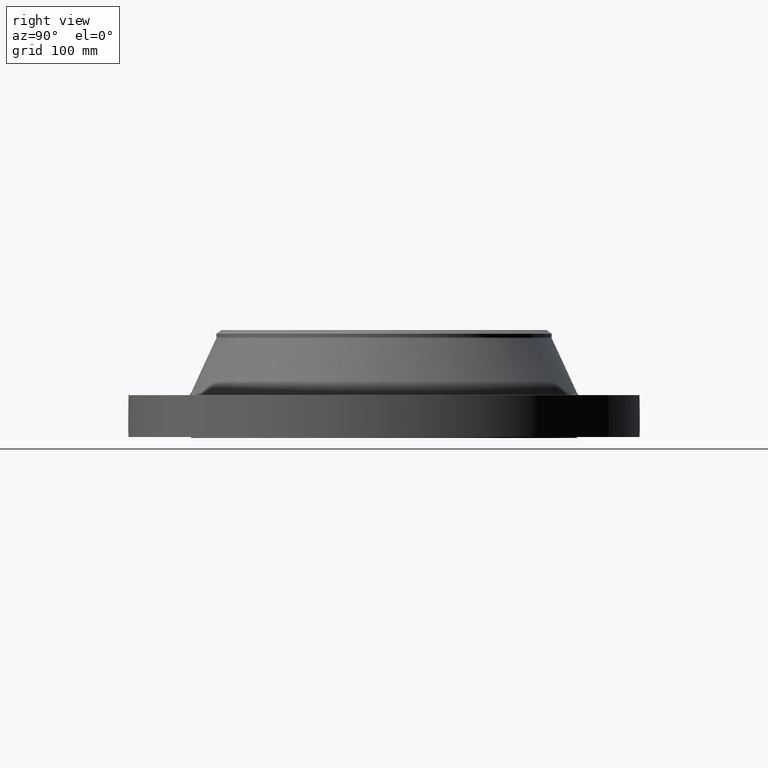
[diagram: clean part render]
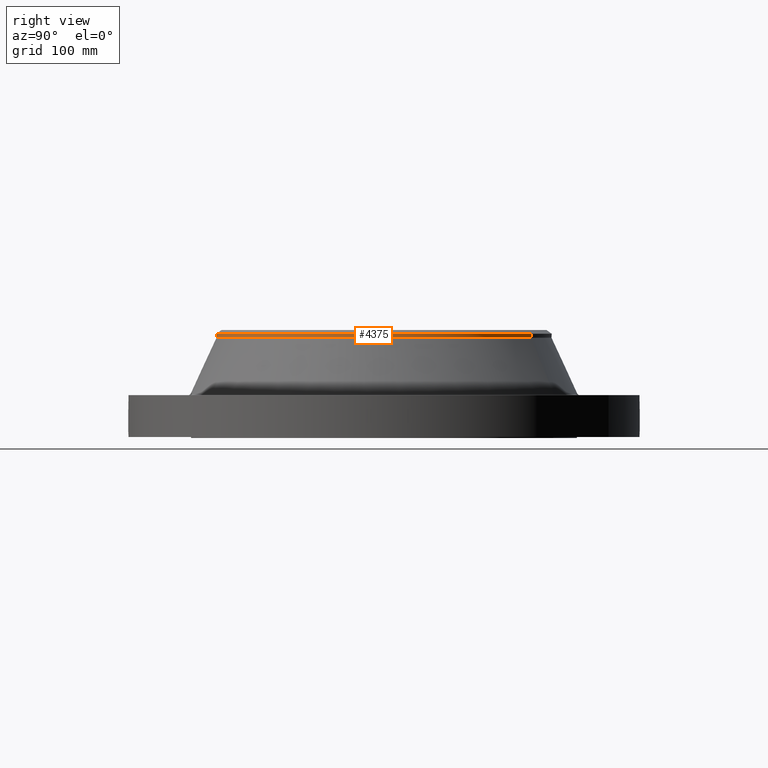
[diagram: same view with one face highlighted and labeled with its STEP entity id]
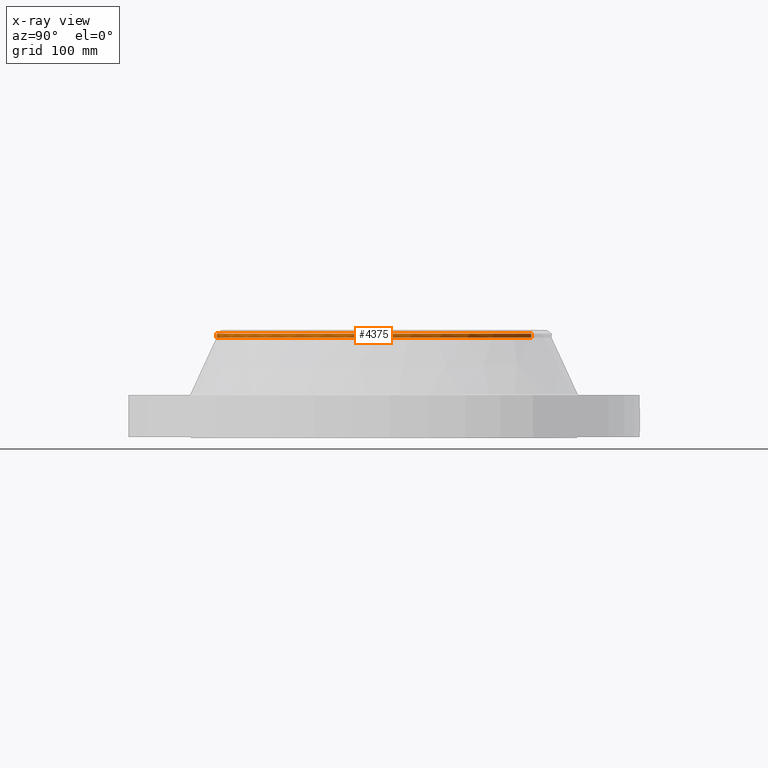
[diagram: x-ray of the same camera — body ghosted, the highlighted face saturated]
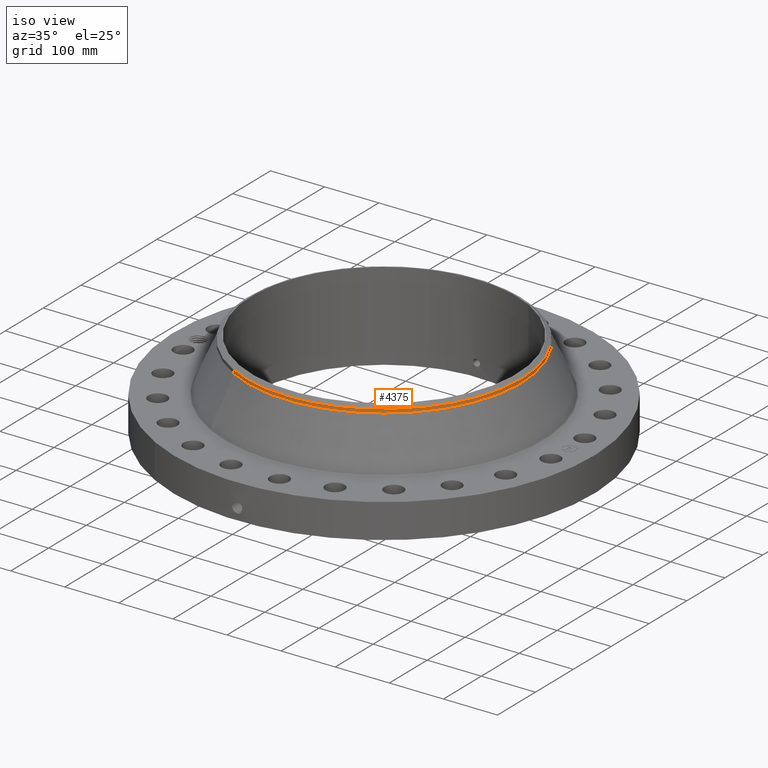
[diagram: same view with one face highlighted and labeled with its STEP entity id]
A machine part, right view. The second image highlights one B-rep face of the part: STEP entity #4375.
The next image is the same camera in x-ray: the body ghosted, the highlighted face saturated — about 0% of this face is hidden behind the body in this view.
A second angle (iso view) of the same face is appended — the face is thin or edge-on in the first view.
In plain terms, the highlighted cylindrical surface (partial cylindrical patch) has radius 254 mm, axis along (0, 0, -1).
Its self-contained STEP definition (entity closure, byte-faithful):
#3558=AXIS2_PLACEMENT_3D('Circle Axis2P3D',#3556,#3557,$) ;
#4340=AXIS2_PLACEMENT_3D('Cylinder Axis2P3D',#4337,#4338,#4339) ;
#4358=AXIS2_PLACEMENT_3D('Circle Axis2P3D',#4356,#4357,$) ;
#4365=AXIS2_PLACEMENT_3D('Circle Axis2P3D',#4363,#4364,$) ;
#3553=CARTESIAN_POINT('Vertex',(4.79425538606,8.77582561894,5.97645135496)) ;
#3556=CARTESIAN_POINT('Axis2P3D Location',(0.,0.,5.97645135496)) ;
#3560=CARTESIAN_POINT('Vertex',(-4.79425538606,-8.77582561894,5.97645135496)) ;
#4337=CARTESIAN_POINT('Axis2P3D Location',(0.,0.,3.22000000001)) ;
#4342=CARTESIAN_POINT('Line Origine',(-4.79425538606,-8.77582561894,6.09456159118)) ;
#4346=CARTESIAN_POINT('Vertex',(-4.79425538606,-8.77582561894,6.2126718274)) ;
#4349=CARTESIAN_POINT('Line Origine',(4.79425538606,8.77582561894,6.09456159118)) ;
#4353=CARTESIAN_POINT('Vertex',(4.79425538606,8.77582561894,6.2126718274)) ;
#4356=CARTESIAN_POINT('Axis2P3D Location',(0.,0.,6.2126718274)) ;
#4360=CARTESIAN_POINT('Vertex',(4.79425538606,-8.77582561894,6.2126718274)) ;
#4363=CARTESIAN_POINT('Axis2P3D Location',(0.,0.,6.2126718274)) ;
#3557=DIRECTION('Axis2P3D Direction',(0.,0.,-0.0393700787402)) ;
#4338=DIRECTION('Axis2P3D Direction',(0.,0.,-0.0393700787402)) ;
#4339=DIRECTION('Axis2P3D XDirection',(-0.0188750212049,-0.0345504945626,0.)) ;
#4343=DIRECTION('Vector Direction',(0.,0.,-0.0393700787402)) ;
#4350=DIRECTION('Vector Direction',(0.,0.,-0.0393700787402)) ;
#4357=DIRECTION('Axis2P3D Direction',(0.,0.,-0.0393700787402)) ;
#4364=DIRECTION('Axis2P3D Direction',(0.,0.,-0.0393700787402)) ;
#4344=VECTOR('Line Direction',#4343,0.0393700787402) ;
#4351=VECTOR('Line Direction',#4350,0.0393700787402) ;
#4369=ORIENTED_EDGE('',*,*,#4348,.F.) ;
#4370=ORIENTED_EDGE('',*,*,#3562,.F.) ;
#4371=ORIENTED_EDGE('',*,*,#4355,.T.) ;
#4372=ORIENTED_EDGE('',*,*,#4362,.F.) ;
#4373=ORIENTED_EDGE('',*,*,#4367,.T.) ;
#4375=ADVANCED_FACE('PartBody',(#4374),#4341,.T.) ;
#3559=CIRCLE('generated circle',#3558,10.) ;
#4359=CIRCLE('generated circle',#4358,10.) ;
#4366=CIRCLE('generated circle',#4365,10.) ;
#4341=CYLINDRICAL_SURFACE('generated cylinder',#4340,10.) ;
#3562=EDGE_CURVE('',#3554,#3561,#3559,.T.) ;
#4348=EDGE_CURVE('',#3561,#4347,#4345,.F.) ;
#4355=EDGE_CURVE('',#3554,#4354,#4352,.F.) ;
#4362=EDGE_CURVE('',#4361,#4354,#4359,.F.) ;
#4367=EDGE_CURVE('',#4361,#4347,#4366,.T.) ;
#4368=EDGE_LOOP('',(#4369,#4370,#4371,#4372,#4373)) ;
#4374=FACE_OUTER_BOUND('',#4368,.T.) ;
#4345=LINE('Line',#4342,#4344) ;
#4352=LINE('Line',#4349,#4351) ;
#3554=VERTEX_POINT('',#3553) ;
#3561=VERTEX_POINT('',#3560) ;
#4347=VERTEX_POINT('',#4346) ;
#4354=VERTEX_POINT('',#4353) ;
#4361=VERTEX_POINT('',#4360) ;